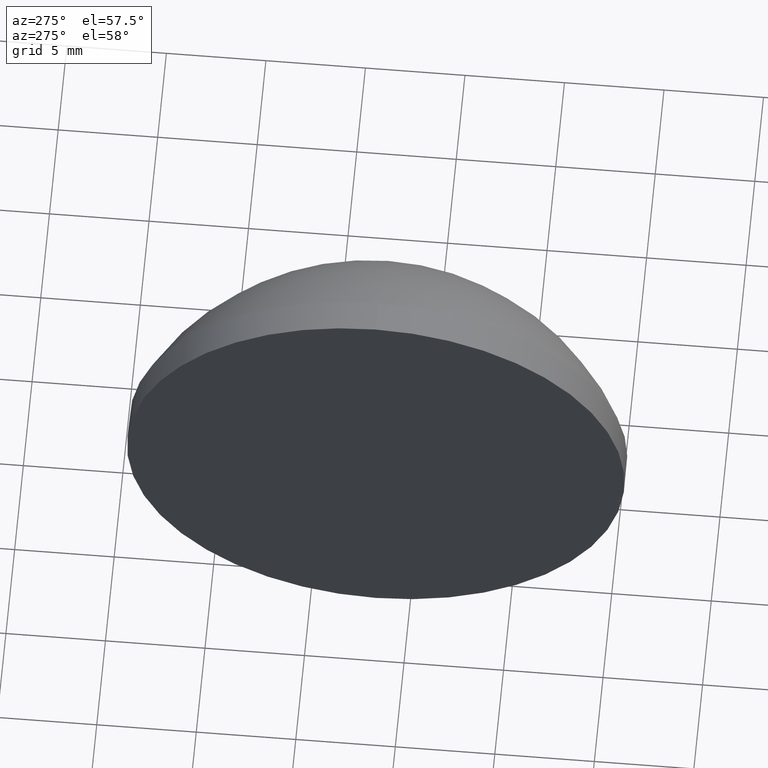
[diagram: clean part render]
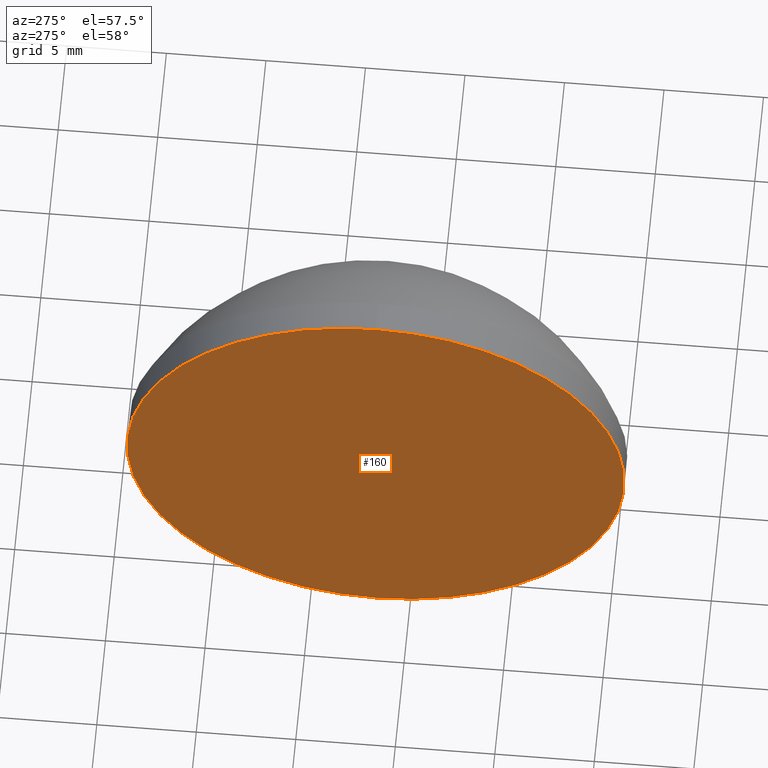
[diagram: same view with one face highlighted and labeled with its STEP entity id]
A machine part, auxiliary view. The second image highlights one B-rep face of the part: STEP entity #160.
In plain terms, the highlighted planar face has unit normal (1, 0, 0).
Its self-contained STEP definition (entity closure, byte-faithful):
#7 = DIRECTION ( 'NONE',  ( 0.0000000000000000000, 0.0000000000000000000, -1.000000000000000000 ) ) ;
#22 = EDGE_CURVE ( 'NONE', #49, #121, #58, .T. ) ;
#24 = CARTESIAN_POINT ( 'NONE',  ( 488.3668740075318100, 171.7156972972453600, 0.0000000000000000000 ) ) ;
#37 = CARTESIAN_POINT ( 'NONE',  ( 488.3668740075318100, 171.7156972972453600, 0.0000000000000000000 ) ) ;
#49 = VERTEX_POINT ( 'NONE', #184 ) ;
#50 = PLANE ( 'NONE',  #52 ) ;
#52 = AXIS2_PLACEMENT_3D ( 'NONE', #139, #163, #7 ) ;
#56 = EDGE_LOOP ( 'NONE', ( #87, #120 ) ) ;
#58 = CIRCLE ( 'NONE', #179, 12.49999999999998400 ) ;
#66 = DIRECTION ( 'NONE',  ( 0.0000000000000000000, 0.0000000000000000000, 1.000000000000000000 ) ) ;
#78 = DIRECTION ( 'NONE',  ( -1.000000000000000000, -0.0000000000000000000, -0.0000000000000000000 ) ) ;
#87 = ORIENTED_EDGE ( 'NONE', *, *, #159, .T. ) ;
#111 = DIRECTION ( 'NONE',  ( 0.0000000000000000000, 0.0000000000000000000, 1.000000000000000000 ) ) ;
#116 = FACE_OUTER_BOUND ( 'NONE', #56, .T. ) ;
#120 = ORIENTED_EDGE ( 'NONE', *, *, #22, .T. ) ;
#121 = VERTEX_POINT ( 'NONE', #162 ) ;
#139 = CARTESIAN_POINT ( 'NONE',  ( 488.3668740075318100, 171.7156972972453600, 0.0000000000000000000 ) ) ;
#146 = CIRCLE ( 'NONE', #147, 12.49999999999998400 ) ;
#147 = AXIS2_PLACEMENT_3D ( 'NONE', #24, #78, #66 ) ;
#159 = EDGE_CURVE ( 'NONE', #121, #49, #146, .T. ) ;
#160 = ADVANCED_FACE ( 'NONE', ( #116 ), #50, .F. ) ;
#162 = CARTESIAN_POINT ( 'NONE',  ( 488.3668740075318100, 171.7156972972453600, 12.49999999999998400 ) ) ;
#163 = DIRECTION ( 'NONE',  ( 1.000000000000000000, 0.0000000000000000000, 0.0000000000000000000 ) ) ;
#169 = DIRECTION ( 'NONE',  ( -1.000000000000000000, -0.0000000000000000000, -0.0000000000000000000 ) ) ;
#179 = AXIS2_PLACEMENT_3D ( 'NONE', #37, #169, #111 ) ;
#184 = CARTESIAN_POINT ( 'NONE',  ( 488.3668740075318100, 171.7156972972453600, -12.49999999999998400 ) ) ;